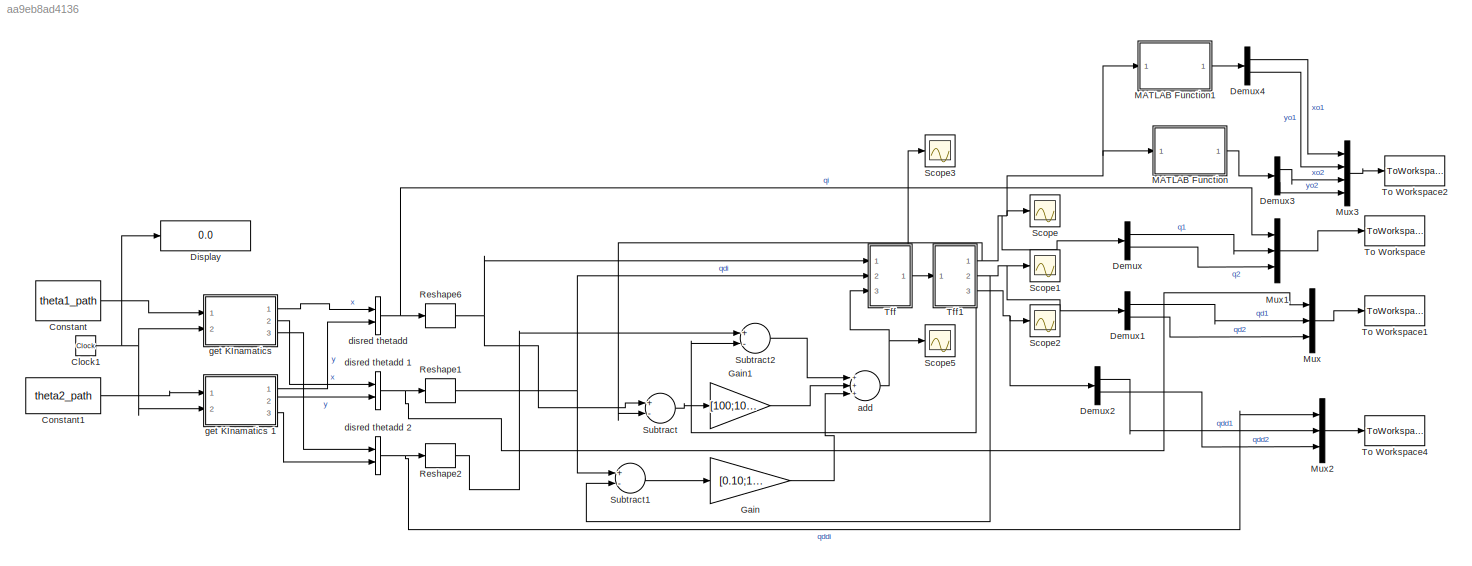
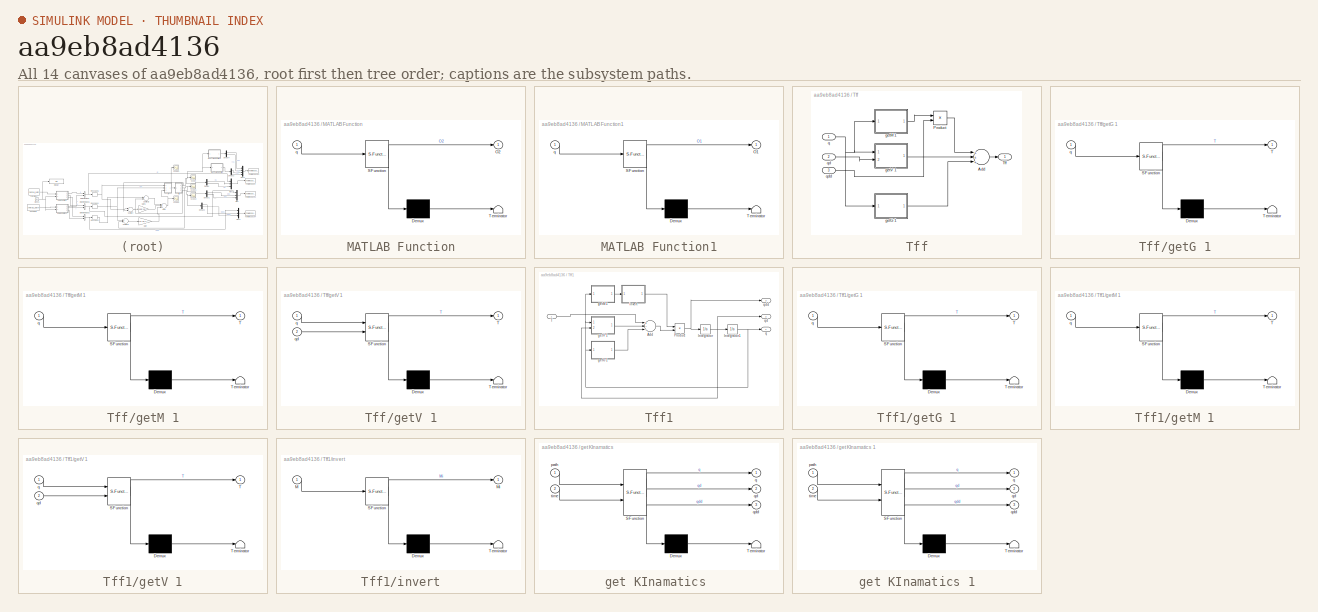
[diagram: thumbnail index - all 14 canvases of the model, root first then tree order]
MODEL slx_aa9eb8ad4136
KIND model
CONFIG AbsTol = auto
CONFIG FixedStep = auto
CONFIG MaxStep = auto
CONFIG MinStep = auto
CONFIG RelTol = 1e-3
CONFIG SampleTimeConstraint = Unconstrained
CONFIG Solver = VariableStepAuto
CONFIG SolverMode = Auto
CONFIG SolverName = VariableStepAuto
CONFIG StartTime = 0.0
CONFIG StopTime = 10.0
BLOCK [Clock] Clock1
BLOCK [Constant] Constant
  Value = theta1_path
BLOCK [Constant] Constant1
  Value = theta2_path
BLOCK [Demux] Demux
  DisplayOption = bar
  Outputs = 2
  Ports = [1, 2]
BLOCK [Demux] Demux1
  DisplayOption = bar
  Outputs = 2
  Ports = [1, 2]
BLOCK [Demux] Demux2
  DisplayOption = bar
  Outputs = 2
  Ports = [1, 2]
BLOCK [Demux] Demux3
  DisplayOption = bar
  Outputs = 2
  Ports = [1, 2]
BLOCK [Demux] Demux4
  DisplayOption = bar
  Outputs = 2
  Ports = [1, 2]
BLOCK [Display] Display
  Decimation = 1
  Ports = [1]
BLOCK [Gain] Gain
  Gain = [0.10;100]
  OutDataTypeStr = Inherit: Inherit via internal rule
  ParamDataTypeStr = Inherit: Inherit via internal rule
  SaturateOnIntegerOverflow = off
BLOCK [Gain] Gain1
  Gain = [100;100]
  OutDataTypeStr = Inherit: Inherit via internal rule
  ParamDataTypeStr = Inherit: Inherit via internal rule
  SaturateOnIntegerOverflow = off
BLOCK [SubSystem] MATLAB Function
  ErrorFcn = Stateflow.Translate.translate
  PermitHierarchicalResolution = ExplicitOnly
  Ports = [1, 1]
  RequestExecContextInheritance = off
  SFBlockType = MATLAB Function
  TreatAsAtomicUnit = on
  Variant = off
BLOCK [Demux] MATLAB Function/ Demux 
  Outputs = 1
  Ports = [1, 1]
BLOCK [S-Function] MATLAB Function/ SFunction 
  EnableBusSupport = on
  FunctionName = sf_sfun
  PortCounts = [1 2]
  Ports = [1, 2]
  SFunctionDeploymentMode = off
  Tag = Stateflow S-Function Problem2_model 3
BLOCK [Terminator] MATLAB Function/ Terminator 
BLOCK [Outport] MATLAB Function/O2
  IconDisplay = Port number
BLOCK [Inport] MATLAB Function/q
  IconDisplay = Port number
BLOCK [SubSystem] MATLAB Function1
  ErrorFcn = Stateflow.Translate.translate
  PermitHierarchicalResolution = ExplicitOnly
  Ports = [1, 1]
  RequestExecContextInheritance = off
  SFBlockType = MATLAB Function
  TreatAsAtomicUnit = on
  Variant = off
BLOCK [Demux] MATLAB Function1/ Demux 
  Outputs = 1
  Ports = [1, 1]
BLOCK [S-Function] MATLAB Function1/ SFunction 
  EnableBusSupport = on
  FunctionName = sf_sfun
  PortCounts = [1 2]
  Ports = [1, 2]
  SFunctionDeploymentMode = off
  Tag = Stateflow S-Function Problem2_model 4
BLOCK [Terminator] MATLAB Function1/ Terminator 
BLOCK [Outport] MATLAB Function1/O1
  IconDisplay = Port number
BLOCK [Inport] MATLAB Function1/q
  IconDisplay = Port number
BLOCK [Mux] Mux
  DisplayOption = bar
  Inputs = 3
  Ports = [3, 1]
BLOCK [Mux] Mux1
  DisplayOption = bar
  Inputs = 3
  Ports = [3, 1]
BLOCK [Mux] Mux2
  DisplayOption = bar
  Inputs = 3
  Ports = [3, 1]
BLOCK [Mux] Mux3
  DisplayOption = bar
  Ports = [4, 1]
BLOCK [Reshape] Reshape1
  OutputDimensionality = Column vector (2-D)
  Ports = [1, 1]
BLOCK [Reshape] Reshape2
  OutputDimensionality = Column vector (2-D)
  Ports = [1, 1]
BLOCK [Reshape] Reshape6
  OutputDimensionality = Column vector (2-D)
  Ports = [1, 1]
BLOCK [Scope] Scope
  Ports = [1]
  ScopeSpecificationString = Simulink.scopes.TimeScopeBlockCfg('CurrentConfiguration', extmgr.ConfigurationSet(extmgr.Configuration('Core','General UI',true),extmgr.Configuration('Core','Source UI',true),extmgr.Configuration('Sources','WiredSimulink',true,'DataLoggingVariableName','ScopeData1'),extmgr.Configuration('Visuals','Time Domain',true,'SerializedDisplays',{struct('MinYLimReal','-1.00192','MaxYLimReal','3.41658','YLab...<+1450ch>
BLOCK [Scope] Scope1
  Ports = [1]
  ScopeSpecificationString = Simulink.scopes.TimeScopeBlockCfg('CurrentConfiguration', extmgr.ConfigurationSet(extmgr.Configuration('Core','General UI',true),extmgr.Configuration('Core','Source UI',true),extmgr.Configuration('Sources','WiredSimulink',true,'DataLoggingVariableName','ScopeData2'),extmgr.Configuration('Visuals','Time Domain',true,'SerializedDisplays',{struct('MinYLimReal','-0.02315','MaxYLimReal','0.20342','YLab...<+1407ch>
BLOCK [Scope] Scope2
  Ports = [1]
  ScopeSpecificationString = C++SS(StrPVP('SaveName','ScopeData'),StrPVP('SaveName','ScopeData2'),StrPVP('LimitDataPoints','on'),StrPVP('DataFormat','Array'),StrPVP('Decimation','1'),StrPVP('BlockParamSampleInput','off'),StrPVP('SaveName','ScopeData3'))
BLOCK [Scope] Scope3
  Ports = [1]
  ScopeSpecificationString = Simulink.scopes.TimeScopeBlockCfg('CurrentConfiguration', extmgr.ConfigurationSet(extmgr.Configuration('Core','General UI',true),extmgr.Configuration('Core','Source UI',true),extmgr.Configuration('Sources','WiredSimulink',true,'DataLoggingLimitDataPoints',true,'DataLoggingSaveFormat','Array','DataLoggingDecimation','1','DataLoggingDecimateData',true),extmgr.Configuration('Visuals','Time Domain',tr...<+1487ch>
BLOCK [Scope] Scope5
  Ports = [1]
  ScopeSpecificationString = Simulink.scopes.TimeScopeBlockCfg('CurrentConfiguration', extmgr.ConfigurationSet(extmgr.Configuration('Core','General UI',true),extmgr.Configuration('Core','Source UI',true),extmgr.Configuration('Sources','WiredSimulink',true,'DataLoggingVariableName','ScopeData1','DataLoggingLimitDataPoints',true,'DataLoggingSaveFormat','Array','DataLoggingDecimation','1','DataLoggingDecimateData',true),extmgr.C...<+1553ch>
BLOCK [Sum] Subtract
  InputSameDT = off
  Inputs = +-
  OutDataTypeStr = Inherit: Inherit via internal rule
  Ports = [2, 1]
  SaturateOnIntegerOverflow = off
BLOCK [Sum] Subtract1
  InputSameDT = off
  Inputs = +-
  OutDataTypeStr = Inherit: Inherit via internal rule
  Ports = [2, 1]
  SaturateOnIntegerOverflow = off
BLOCK [Sum] Subtract2
  InputSameDT = off
  Inputs = +-
  OutDataTypeStr = Inherit: Inherit via internal rule
  Ports = [2, 1]
  SaturateOnIntegerOverflow = off
BLOCK [SubSystem] Tff
  Ports = [3, 1]
  RequestExecContextInheritance = off
  Variant = off
BLOCK [Sum] Tff/Add
  InputSameDT = off
  Inputs = +++
  OutDataTypeStr = Inherit: Inherit via internal rule
  Ports = [3, 1]
  SaturateOnIntegerOverflow = off
BLOCK [Product] Tff/Product
  InputSameDT = off
  Multiplication = Matrix(*)
  OutDataTypeStr = Inherit: Inherit via internal rule
  Ports = [2, 1]
  RndMeth = Floor
  SaturateOnIntegerOverflow = off
BLOCK [Outport] Tff/Tff
  IconDisplay = Port number
BLOCK [SubSystem] Tff/getG 1
  ErrorFcn = Stateflow.Translate.translate
  PermitHierarchicalResolution = ExplicitOnly
  Ports = [1, 1]
  RequestExecContextInheritance = off
  SFBlockType = MATLAB Function
  TreatAsAtomicUnit = on
  Variant = off
BLOCK [Demux] Tff/getG 1/ Demux 
  Outputs = 1
  Ports = [1, 1]
BLOCK [S-Function] Tff/getG 1/ SFunction 
  EnableBusSupport = on
  FunctionName = sf_sfun
  PortCounts = [1 2]
  Ports = [1, 2]
  SFunctionDeploymentMode = off
  Tag = Stateflow S-Function Problem2_model 8
BLOCK [Terminator] Tff/getG 1/ Terminator 
BLOCK [Outport] Tff/getG 1/T
  IconDisplay = Port number
BLOCK [Inport] Tff/getG 1/q
  IconDisplay = Port number
BLOCK [SubSystem] Tff/getM 1
  ErrorFcn = Stateflow.Translate.translate
  PermitHierarchicalResolution = ExplicitOnly
  Ports = [1, 1]
  RequestExecContextInheritance = off
  SFBlockType = MATLAB Function
  TreatAsAtomicUnit = on
  Variant = off
BLOCK [Demux] Tff/getM 1/ Demux 
  Outputs = 1
  Ports = [1, 1]
BLOCK [S-Function] Tff/getM 1/ SFunction 
  EnableBusSupport = on
  FunctionName = sf_sfun
  PortCounts = [1 2]
  Ports = [1, 2]
  SFunctionDeploymentMode = off
  Tag = Stateflow S-Function Problem2_model 6
BLOCK [Terminator] Tff/getM 1/ Terminator 
BLOCK [Outport] Tff/getM 1/T
  IconDisplay = Port number
BLOCK [Inport] Tff/getM 1/q
  IconDisplay = Port number
BLOCK [SubSystem] Tff/getV 1
  ErrorFcn = Stateflow.Translate.translate
  PermitHierarchicalResolution = ExplicitOnly
  Ports = [2, 1]
  RequestExecContextInheritance = off
  SFBlockType = MATLAB Function
  TreatAsAtomicUnit = on
  Variant = off
BLOCK [Demux] Tff/getV 1/ Demux 
  Outputs = 1
  Ports = [1, 1]
BLOCK [S-Function] Tff/getV 1/ SFunction 
  EnableBusSupport = on
  FunctionName = sf_sfun
  PortCounts = [2 2]
  Ports = [2, 2]
  SFunctionDeploymentMode = off
  Tag = Stateflow S-Function Problem2_model 7
BLOCK [Terminator] Tff/getV 1/ Terminator 
BLOCK [Outport] Tff/getV 1/T
  IconDisplay = Port number
BLOCK [Inport] Tff/getV 1/q
  IconDisplay = Port number
BLOCK [Inport] Tff/getV 1/qd
  IconDisplay = Port number
  Port = 2
BLOCK [Inport] Tff/q
  IconDisplay = Port number
BLOCK [Inport] Tff/qd
  IconDisplay = Port number
  Port = 2
BLOCK [Inport] Tff/qdd
  IconDisplay = Port number
  Port = 3
BLOCK [SubSystem] Tff1
  Ports = [1, 3]
  RequestExecContextInheritance = off
  Variant = off
BLOCK [Sum] Tff1/Add
  InputSameDT = off
  Inputs = +--
  OutDataTypeStr = Inherit: Inherit via internal rule
  Ports = [3, 1]
  SaturateOnIntegerOverflow = off
BLOCK [Integrator] Tff1/Integrator
  InitialCondition = [0;0]
  Ports = [1, 1]
BLOCK [Integrator] Tff1/Integrator1
  InitialCondition = x2_i
  Ports = [1, 1]
BLOCK [Product] Tff1/Product
  InputSameDT = off
  Multiplication = Matrix(*)
  OutDataTypeStr = Inherit: Inherit via internal rule
  Ports = [2, 1]
  RndMeth = Floor
  SaturateOnIntegerOverflow = off
BLOCK [Inport] Tff1/T
  IconDisplay = Port number
BLOCK [SubSystem] Tff1/getG 1
  ErrorFcn = Stateflow.Translate.translate
  PermitHierarchicalResolution = ExplicitOnly
  Ports = [1, 1]
  RequestExecContextInheritance = off
  SFBlockType = MATLAB Function
  TreatAsAtomicUnit = on
  Variant = off
BLOCK [Demux] Tff1/getG 1/ Demux 
  Outputs = 1
  Ports = [1, 1]
BLOCK [S-Function] Tff1/getG 1/ SFunction 
  EnableBusSupport = on
  FunctionName = sf_sfun
  PortCounts = [1 2]
  Ports = [1, 2]
  SFunctionDeploymentMode = off
  Tag = Stateflow S-Function Problem2_model 9
BLOCK [Terminator] Tff1/getG 1/ Terminator 
BLOCK [Outport] Tff1/getG 1/T
  IconDisplay = Port number
BLOCK [Inport] Tff1/getG 1/q
  IconDisplay = Port number
BLOCK [SubSystem] Tff1/getM 1
  ErrorFcn = Stateflow.Translate.translate
  PermitHierarchicalResolution = ExplicitOnly
  Ports = [1, 1]
  RequestExecContextInheritance = off
  SFBlockType = MATLAB Function
  TreatAsAtomicUnit = on
  Variant = off
BLOCK [Demux] Tff1/getM 1/ Demux 
  Outputs = 1
  Ports = [1, 1]
BLOCK [S-Function] Tff1/getM 1/ SFunction 
  EnableBusSupport = on
  FunctionName = sf_sfun
  PortCounts = [1 2]
  Ports = [1, 2]
  SFunctionDeploymentMode = off
  Tag = Stateflow S-Function Problem2_model 10
BLOCK [Terminator] Tff1/getM 1/ Terminator 
BLOCK [Outport] Tff1/getM 1/T
  IconDisplay = Port number
BLOCK [Inport] Tff1/getM 1/q
  IconDisplay = Port number
BLOCK [SubSystem] Tff1/getV 1
  ErrorFcn = Stateflow.Translate.translate
  PermitHierarchicalResolution = ExplicitOnly
  Ports = [2, 1]
  RequestExecContextInheritance = off
  SFBlockType = MATLAB Function
  TreatAsAtomicUnit = on
  Variant = off
BLOCK [Demux] Tff1/getV 1/ Demux 
  Outputs = 1
  Ports = [1, 1]
BLOCK [S-Function] Tff1/getV 1/ SFunction 
  EnableBusSupport = on
  FunctionName = sf_sfun
  PortCounts = [2 2]
  Ports = [2, 2]
  SFunctionDeploymentMode = off
  Tag = Stateflow S-Function Problem2_model 11
BLOCK [Terminator] Tff1/getV 1/ Terminator 
BLOCK [Outport] Tff1/getV 1/T
  IconDisplay = Port number
BLOCK [Inport] Tff1/getV 1/q
  IconDisplay = Port number
BLOCK [Inport] Tff1/getV 1/qd
  IconDisplay = Port number
  Port = 2
BLOCK [SubSystem] Tff1/invert
  ErrorFcn = Stateflow.Translate.translate
  PermitHierarchicalResolution = ExplicitOnly
  Ports = [1, 1]
  RequestExecContextInheritance = off
  SFBlockType = MATLAB Function
  TreatAsAtomicUnit = on
  Variant = off
BLOCK [Demux] Tff1/invert/ Demux 
  Outputs = 1
  Ports = [1, 1]
BLOCK [S-Function] Tff1/invert/ SFunction 
  EnableBusSupport = on
  FunctionName = sf_sfun
  PortCounts = [1 2]
  Ports = [1, 2]
  SFunctionDeploymentMode = off
  Tag = Stateflow S-Function Problem2_model 12
BLOCK [Terminator] Tff1/invert/ Terminator 
BLOCK [Inport] Tff1/invert/M
  IconDisplay = Port number
BLOCK [Outport] Tff1/invert/Mi
  IconDisplay = Port number
BLOCK [Outport] Tff1/q
  IconDisplay = Port number
BLOCK [Outport] Tff1/qd
  IconDisplay = Port number
  Port = 2
BLOCK [Outport] Tff1/qdd
  IconDisplay = Port number
  Port = 3
BLOCK [ToWorkspace] To Workspace
  FixptAsFi = on
  MaxDataPoints = inf
  Ports = [1]
  SampleTime = -1
  Save2DSignal = 3-D array (concatenate along third dimension)
  VariableName = q
BLOCK [ToWorkspace] To Workspace1
  FixptAsFi = on
  MaxDataPoints = inf
  Ports = [1]
  SampleTime = -1
  Save2DSignal = 3-D array (concatenate along third dimension)
  VariableName = qd
BLOCK [ToWorkspace] To Workspace2
  FixptAsFi = on
  MaxDataPoints = inf
  Ports = [1]
  SampleTime = -1
  Save2DSignal = 3-D array (concatenate along third dimension)
  VariableName = O
BLOCK [ToWorkspace] To Workspace4
  FixptAsFi = on
  MaxDataPoints = inf
  Ports = [1]
  SampleTime = -1
  Save2DSignal = 2-D array (concatenate along first dimension)
  VariableName = qdd
BLOCK [Sum] add 
  InputSameDT = off
  Inputs = +++
  OutDataTypeStr = Inherit: Inherit via internal rule
  Ports = [3, 1]
  SaturateOnIntegerOverflow = off
BLOCK [Concatenate] disred thetadd 
  Ports = [2, 1]
BLOCK [Concatenate] disred thetadd 1
  Ports = [2, 1]
BLOCK [Concatenate] disred thetadd 2
  Ports = [2, 1]
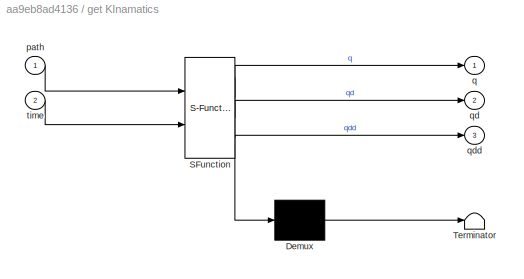
BLOCK [SubSystem] get KInamatics 
  ErrorFcn = Stateflow.Translate.translate
  PermitHierarchicalResolution = ExplicitOnly
  Ports = [2, 3]
  RequestExecContextInheritance = off
  SFBlockType = MATLAB Function
  TreatAsAtomicUnit = on
  Variant = off
BLOCK [Demux] get KInamatics / Demux 
  Outputs = 1
  Ports = [1, 1]
BLOCK [S-Function] get KInamatics / SFunction 
  EnableBusSupport = on
  FunctionName = sf_sfun
  PortCounts = [2 4]
  Ports = [2, 4]
  SFunctionDeploymentMode = off
  Tag = Stateflow S-Function Problem2_model 2
BLOCK [Terminator] get KInamatics / Terminator 
BLOCK [Inport] get KInamatics /path
  IconDisplay = Port number
BLOCK [Outport] get KInamatics /q
  IconDisplay = Port number
BLOCK [Outport] get KInamatics /qd
  IconDisplay = Port number
  Port = 2
BLOCK [Outport] get KInamatics /qdd
  IconDisplay = Port number
  Port = 3
BLOCK [Inport] get KInamatics /time
  IconDisplay = Port number
  Port = 2
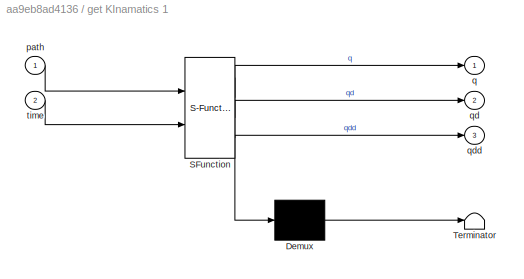
BLOCK [SubSystem] get KInamatics 1
  ErrorFcn = Stateflow.Translate.translate
  PermitHierarchicalResolution = ExplicitOnly
  Ports = [2, 3]
  RequestExecContextInheritance = off
  SFBlockType = MATLAB Function
  TreatAsAtomicUnit = on
  Variant = off
BLOCK [Demux] get KInamatics 1/ Demux 
  Outputs = 1
  Ports = [1, 1]
BLOCK [S-Function] get KInamatics 1/ SFunction 
  EnableBusSupport = on
  FunctionName = sf_sfun
  PortCounts = [2 4]
  Ports = [2, 4]
  SFunctionDeploymentMode = off
  Tag = Stateflow S-Function Problem2_model 1
BLOCK [Terminator] get KInamatics 1/ Terminator 
BLOCK [Inport] get KInamatics 1/path
  IconDisplay = Port number
BLOCK [Outport] get KInamatics 1/q
  IconDisplay = Port number
BLOCK [Outport] get KInamatics 1/qd
  IconDisplay = Port number
  Port = 2
BLOCK [Outport] get KInamatics 1/qdd
  IconDisplay = Port number
  Port = 3
BLOCK [Inport] get KInamatics 1/time
  IconDisplay = Port number
  Port = 2
NET Clock1:1 -> Display:1, get KInamatics 1:2, get KInamatics :2
LINE Constant1:1 -> get KInamatics 1:1
LINE Constant:1 -> get KInamatics :1
LINE Demux1:1 -> Mux:2
LINE Demux1:2 -> Mux:3
LINE Demux2:1 -> Mux2:2
LINE Demux2:2 -> Mux2:3
LINE Demux3:1 -> Mux3:3
LINE Demux3:2 -> Mux3:4
LINE Demux4:1 -> Mux3:1
LINE Demux4:2 -> Mux3:2
LINE Demux:1 -> Mux1:2
LINE Demux:2 -> Mux1:3
LINE Gain1:1 -> add :2
LINE Gain:1 -> add :3
LINE MATLAB Function1:1 -> Demux4:1
LINE MATLAB Function:1 -> Demux3:1
LINE Mux1:1 -> To Workspace:1
LINE Mux2:1 -> To Workspace4:1
LINE Mux3:1 -> To Workspace2:1
LINE Mux:1 -> To Workspace1:1
NET Reshape1:1 -> Subtract1:1, Tff:2
LINE Reshape2:1 -> Subtract2:1
NET Reshape6:1 -> Subtract:1, Tff:1
LINE Subtract1:1 -> Gain:1
LINE Subtract2:1 -> add :1
LINE Subtract:1 -> Gain1:1
LINE Tff/Add:1 -> Tff/Tff:1
LINE Tff/Product:1 -> Tff/Add:1
LINE Tff/getG 1:1 -> Tff/Add:3
LINE Tff/getM 1:1 -> Tff/Product:1
LINE Tff/getV 1:1 -> Tff/Add:2
NET Tff/q:1 -> Tff/getG 1:1, Tff/getM 1:1, Tff/getV 1:1
LINE Tff/qd:1 -> Tff/getV 1:2
LINE Tff/qdd:1 -> Tff/Product:2
LINE Tff1/Add:1 -> Tff1/Product:2
NET Tff1/Integrator1:1 -> Tff1/getG 1:1, Tff1/getM 1:1, Tff1/getV 1:1, Tff1/q:1
NET Tff1/Integrator:1 -> Tff1/Integrator1:1, Tff1/getV 1:2, Tff1/qd:1
NET Tff1/Product:1 -> Tff1/Integrator:1, Tff1/qdd:1
LINE Tff1/T:1 -> Tff1/Add:1
LINE Tff1/getG 1:1 -> Tff1/Add:3
LINE Tff1/getM 1:1 -> Tff1/invert:1
LINE Tff1/getV 1:1 -> Tff1/Add:2
LINE Tff1/invert:1 -> Tff1/Product:1
NET Tff1:1 -> Demux:1, MATLAB Function1:1, MATLAB Function:1, Scope:1, Subtract:2
NET Tff1:2 -> Demux1:1, Scope1:1, Subtract1:2
NET Tff1:3 -> Demux2:1, Scope2:1, Subtract2:2
NET Tff:1 -> Scope3:1, Tff1:1
NET add :1 -> Scope5:1, Tff:3
NET disred thetadd 1:1 -> Mux:1, Reshape1:1
NET disred thetadd 2:1 -> Mux2:1, Reshape2:1
NET disred thetadd :1 -> Mux1:1, Reshape6:1
LINE get KInamatics 1:1 -> disred thetadd :2
LINE get KInamatics 1:2 -> disred thetadd 1:2
LINE get KInamatics 1:3 -> disred thetadd 2:2
LINE get KInamatics :1 -> disred thetadd :1
LINE get KInamatics :2 -> disred thetadd 1:1
LINE get KInamatics :3 -> disred thetadd 2:1
note: NET lines group one-source signal fan-out (src -> all destinations, sorted); 1:1 wires keep LINE
CHART get KInamatics
1 states=1 transitions=1
  STATE_LABEL 'eML_blk_kernel()'
  STATE_LABEL 'SCRIPT:\nfunction [ q,qd,qdd] = fcn(path, time)\n%#codegen\n[q qd qdd] = getKin(path, time);\n'
CHART get KInamatics
 states=1 transitions=1
  STATE_LABEL 'eML_blk_kernel()'
  STATE_LABEL 'SCRIPT:\nfunction [ q,qd,qdd] = fcn(path, time)\n%#codegen\n[q qd qdd] = getKin(path, time);\n'
CHART MATLAB Function states=1 transitions=1
  STATE_LABEL 'eML_blk_kernel()'
  STATE_LABEL 'SCRIPT:\nfunction O2 = fcn(q)\n%#codegen\na1 = 0.3;\na2 = 0.3\n O2 = getO2(a1,a2,q)'
CHART MATLAB Function1 states=1 transitions=1
  STATE_LABEL 'eML_blk_kernel()'
  STATE_LABEL 'SCRIPT:\nfunction O1 = fcn(q)\n%#codegen\na1 = 0.3;\na2 = 0.3\n O1 = getO1(a1,a2,q)'
CHART Tff/getM 1 states=1 transitions=1
  STATE_LABEL 'eML_blk_kernel()'
  STATE_LABEL 'SCRIPT:\nfunction T = fcn(q)\n%#codegen\nT = getM(q);\n'
CHART Tff/getV 1 states=1 transitions=1
  STATE_LABEL 'eML_blk_kernel()'
  STATE_LABEL 'SCRIPT:\nfunction T = fcn(q, qd)\n%#codegen\nT = getV(q, qd);\n'
CHART Tff/getG 1 states=1 transitions=1
  STATE_LABEL 'eML_blk_kernel()'
  STATE_LABEL 'SCRIPT:\nfunction T = fcn(q)\n%#codegen\nT = getG(q);\n'
CHART Tff1/getG 1 states=1 transitions=1
  STATE_LABEL 'eML_blk_kernel()'
  STATE_LABEL 'SCRIPT:\nfunction T = fcn(q)\n%#codegen\nT = getG(q);\n'
CHART Tff1/getM 1 states=1 transitions=1
  STATE_LABEL 'eML_blk_kernel()'
  STATE_LABEL 'SCRIPT:\nfunction T = fcn(q)\n%#codegen\nT = getM(q);\n'
CHART Tff1/getV 1 states=1 transitions=1
  STATE_LABEL 'eML_blk_kernel()'
  STATE_LABEL 'SCRIPT:\nfunction T = fcn(q, qd)\n%#codegen\nT = getV(q, qd);\n'
CHART Tff1/invert states=1 transitions=1
  STATE_LABEL 'eML_blk_kernel()'
  STATE_LABEL 'SCRIPT:\nfunction Mi = fcn(M)\n%#codegen\nMi =pinv(M);\n'
